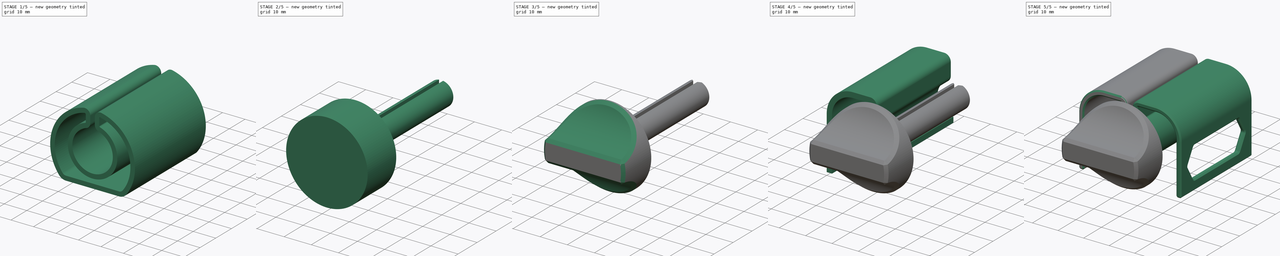
[diagram: build sequence overview — one tinted view per stage of 5, left to right]
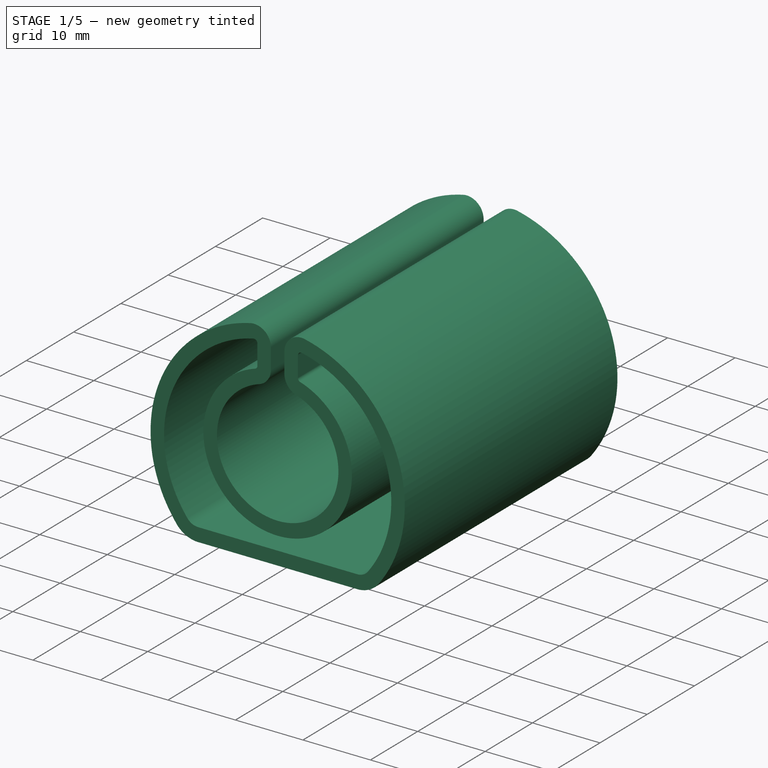
[diagram: stage 1 of 5 — iso view after this stage's code; geometry added in this stage tinted green]
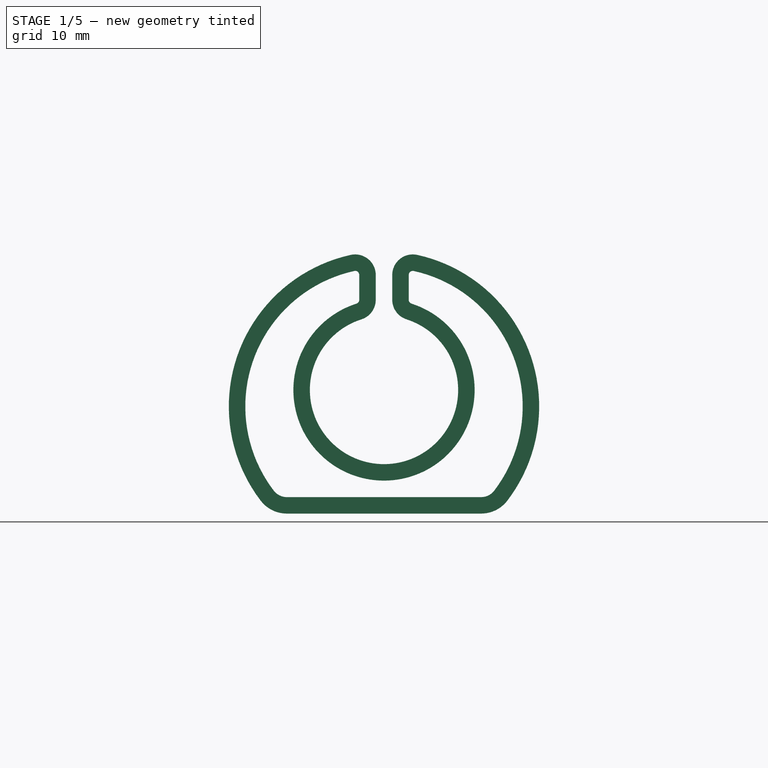
[diagram: stage 1 of 5 — front view after this stage's code; geometry added in this stage tinted green]
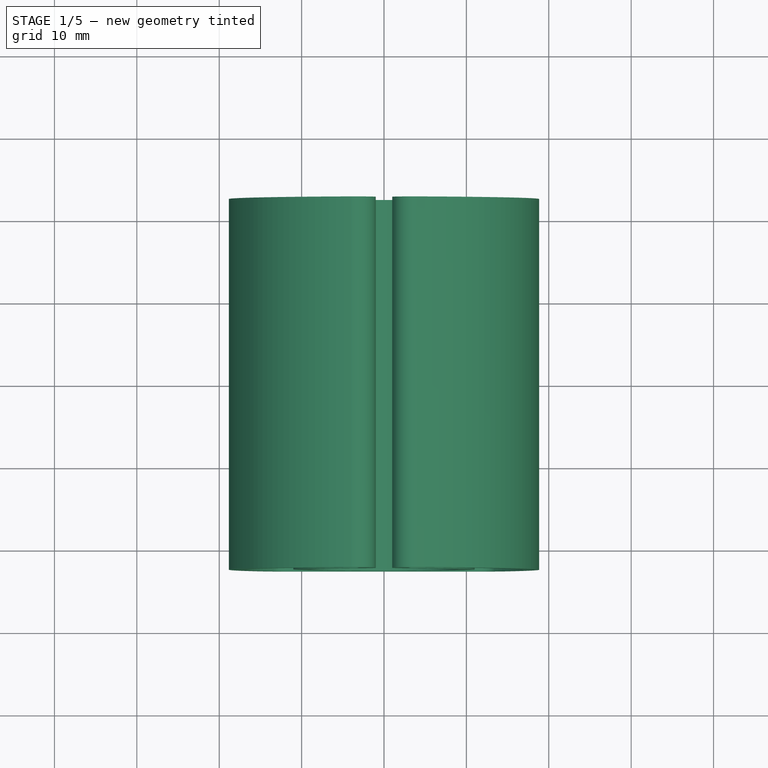
[diagram: stage 1 of 5 — top view after this stage's code; geometry added in this stage tinted green]
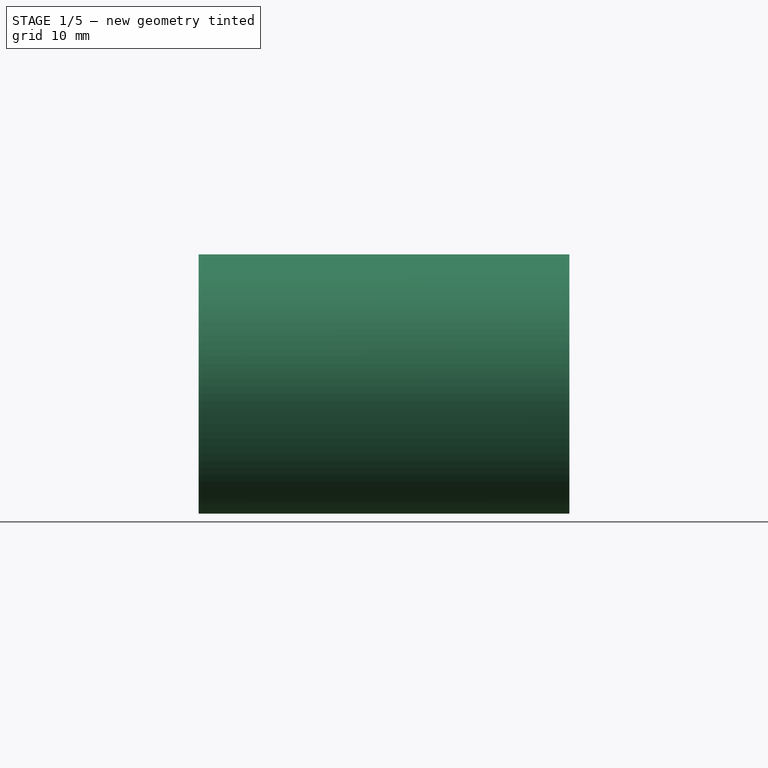
[diagram: stage 1 of 5 — right view after this stage's code; geometry added in this stage tinted green]
FCSTD DOCUMENT  (FreeCAD 1.2R20260609 (Git shallow))
Label: Tooth Paste Squeezer v0
License: Creative Commons Attribution-NonCommercial-ShareAlike 4.0
LicenseURL: https://creativecommons.org/licenses/by-nc-sa/4.0/
objects: Sketcher::SketchObject×8, PartDesign::Chamfer×5, PartDesign::Pad×4, App::Point×3, PartDesign::Pocket×3, PartDesign::Body×3, PartDesign::Mirrored×2, PartDesign::Thickness×1, PartDesign::SubShapeBinder×1, PartDesign::Revolution×1
note: 66 computed .brp shape members not serialized (recipe doc carries the construction recipe); baked Part::Feature solids carry a one-line shape summary decoded from their .brp

FEATURE [PartDesign::Body] Body  label="Support"
  AllowCompound = false
  Group = -> [Sketch,Pad,Sketch001,Pocket,Mirrored,Chamfer]
  Origin = -> Origin
  Tip = -> Chamfer
FEATURE [App::Point] Origin005  label="Origine005"
  Role = Origin
FEATURE [Sketcher::SketchObject] Sketch003
  ArcFitTolerance = 1e-06
  AttachmentSupport = -> [Origin004]
  ExternalTypes = [0]
  FullyConstrained = true
  MakeInternals = false
  MapMode = 5
  Placement = pos=(0,0,0) rot=(1,0,0;1.5708rad)
  sketch-geometry (8):
    g0: ArcOfCircle CenterX=0 CenterY=-2 CenterZ=0 NormalX=0 NormalY=0 NormalZ=1 AngleXU=0 Radius=18.8338 StartAngle=1.78675 EndAngle=3.79352
    g1: ArcOfCircle CenterX=-3.5 CenterY=13.9545 CenterZ=0 NormalX=0 NormalY=0 NormalZ=1 AngleXU=0 Radius=2.5 StartAngle=4e-16 EndAngle=1.78675
    g2: LineSegment StartX=-1 StartY=13.9545 StartZ=0 EndX=-1 EndY=10.9545 EndZ=0
    g3: ArcOfCircle CenterX=0 CenterY=0 CenterZ=0 NormalX=0 NormalY=0 NormalZ=1 AngleXU=0 Radius=9 StartAngle=1.88005 EndAngle=4.71239
    g4: ArcOfCircle CenterX=-3.5 CenterY=10.9545 CenterZ=0 NormalX=0 NormalY=0 NormalZ=1 AngleXU=0 Radius=2.5 StartAngle=5.02164 EndAngle=6.28319
    g5: LineSegment StartX=-1.7e-15 StartY=-9 StartZ=0 EndX=0 EndY=-15 EndZ=0
    g6: LineSegment StartX=0 StartY=-15 StartZ=0 EndX=-11.7916 EndY=-15 EndZ=0
    g7: ArcOfCircle CenterX=-11.7916 CenterY=-11 CenterZ=0 NormalX=0 NormalY=0 NormalZ=1 AngleXU=0 Radius=4 StartAngle=3.79352 EndAngle=4.71239
  constraints (22):
    c: Tangent(g1,g2) = 1.5708
    c: PointOnObject(g3,g-2)
    c: Vertical(g2)
    c: Distance(g2,g-2) = 1
    c: Radius(g3) = 9
    c: Coincident(g3,g-1)
    c: Tangent(g3,g4) = 1.5708
    c: Tangent(g2,g4) = 1.5708
    c: Equal(g1,g4)
    c: Coincident(g5,g3)
    c: PointOnObject(g5,g-2)
    c: Coincident(g5,g6)
    c: Tangent(g6,g7) = 1.5708
    c: Horizontal(g6)
    c: Tangent(g7,g0) = -1.5708
    c: DistanceY(g5,g5) = 6
    c: Diameter(g1) = 5
    c: Diameter(g7) = 8
    c: Tangent(g0,g1) = -1.5708
    c: PointOnObject(g0,g-2)
    c: Distance(g0,g-1) = 2
    c: DistanceY(g2,g2) = 3
FEATURE [PartDesign::Pad] Pad001
  Direction = (0,-1,2e-16)
  FuzzyTolerance = 0
  Length = 45
  Length2 = 10
  Profile = -> Sketch003
  ReferenceAxis = -> Sketch003 [N_Axis]
  Refine = true
  SideType = 2
  Suppressed = false
  Type = 0
  Type2 = 0
FEATURE [PartDesign::Thickness] Thickness
  Base = -> Pad001 [Face9,Face10,Face7]
  BaseFeature = -> Pad001
  FuzzyTolerance = 0
  Intersection = false
  Join = 0
  Mode = 0
  Refine = true
  Reversed = true
  SupportTransform = false
  Suppressed = false
  Value = 2
FEATURE [PartDesign::Mirrored] Mirrored001
  BaseFeature = -> Thickness
  FuzzyTolerance = 0
  MirrorPlane = -> Sketch003 [V_Axis]
  Originals = -> [Pad001]
  Refine = true
  Suppressed = false
  TransformMode = 1
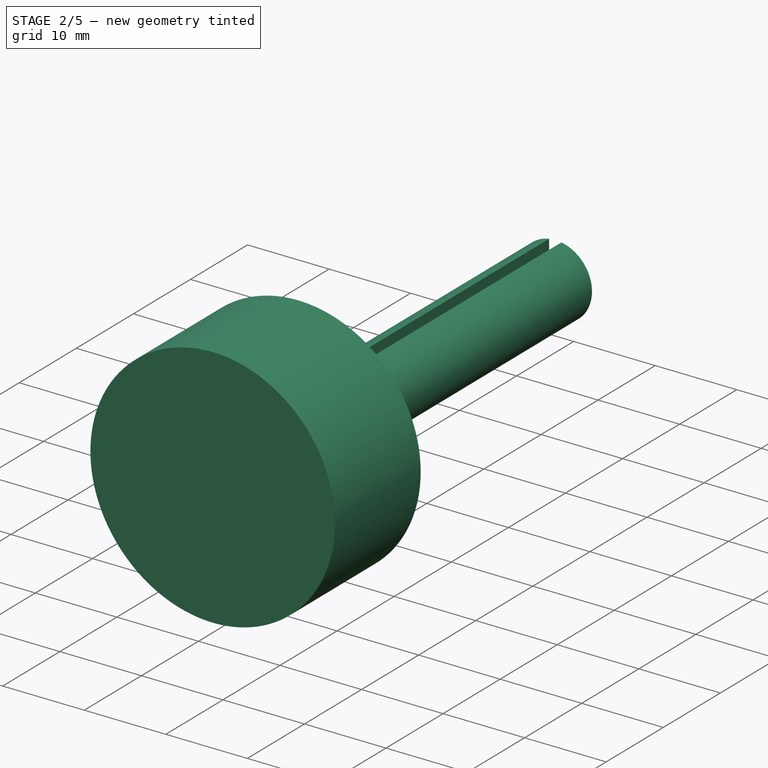
[diagram: stage 2 of 5 — iso view after this stage's code; geometry added in this stage tinted green]
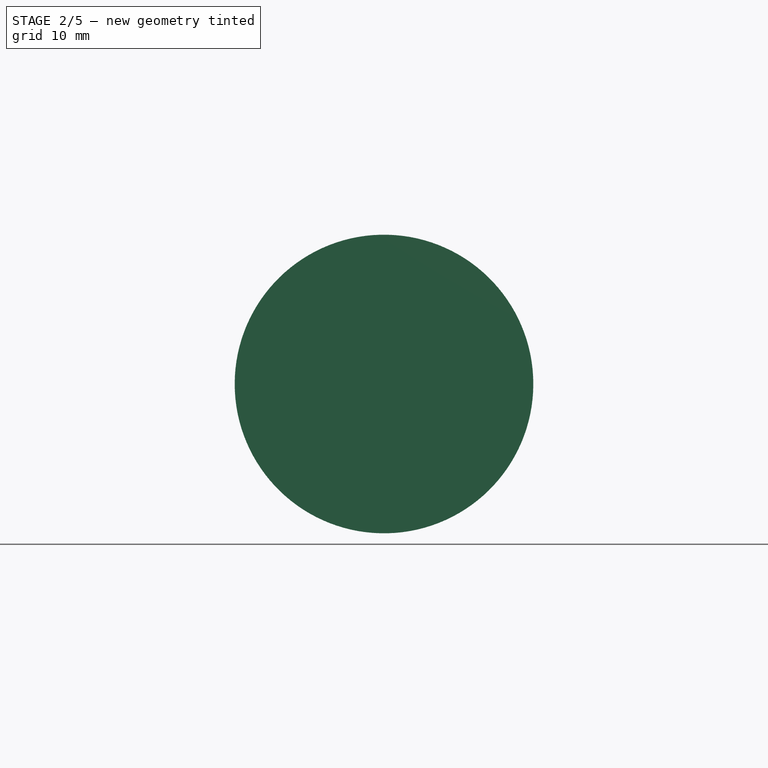
[diagram: stage 2 of 5 — front view after this stage's code; geometry added in this stage tinted green]
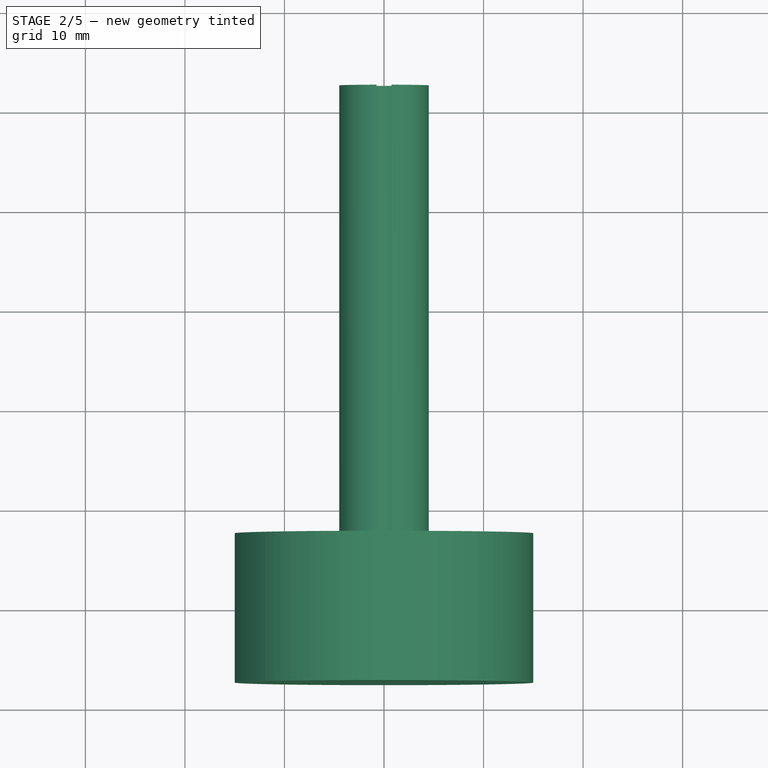
[diagram: stage 2 of 5 — top view after this stage's code; geometry added in this stage tinted green]
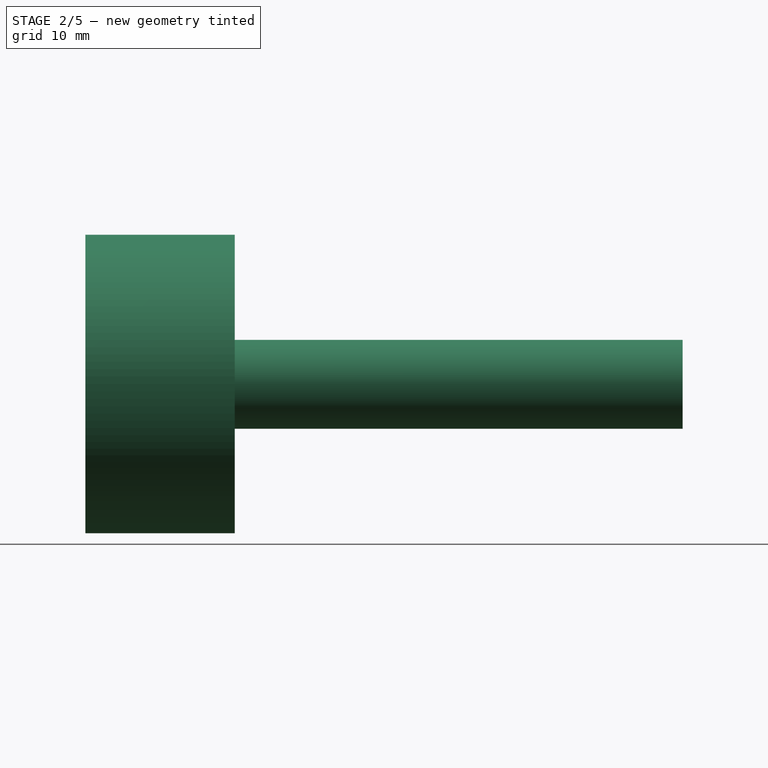
[diagram: stage 2 of 5 — right view after this stage's code; geometry added in this stage tinted green]
FEATURE [PartDesign::Chamfer] Chamfer001
  Angle = 45
  Base = -> Mirrored001 [Face22,Face6]
  BaseFeature = -> Mirrored001
  ChamferType = 0
  FlipDirection = false
  FuzzyTolerance = 0
  Refine = true
  Size = 0.5
  Size2 = 1
  SupportTransform = false
  Suppressed = false
  UseAllEdges = false
FEATURE [PartDesign::Body] Body002  label="Support v2"
  AllowCompound = false
  Group = -> [Sketch003,Pad001,Thickness,Mirrored001,Chamfer001]
  Origin = -> Origin004
  Tip = -> Chamfer001
FEATURE [App::Point] Origin007  label="Origine-point"
  Role = Origin
FEATURE [PartDesign::SubShapeBinder] Binder
  BindCopyOnChange = 0
  BindMode = 0
  ClaimChildren = false
  Context = -> Body003 [Binder.]
  Fuse = false
  MakeFace = true
  OffsetFill = false
  OffsetIntersection = false
  OffsetJoinType = 0
  OffsetOpenResult = false
  PartialLoad = false
  Refine = true
  Relative = true
  Support = -> [Body002]
  _Version = 2
FEATURE [Sketcher::SketchObject] Sketch004
  ArcFitTolerance = 1e-06
  AttachmentSupport = -> [Origin006]
  ExternalTypes = [0]
  FullyConstrained = true
  MakeInternals = true
  MapMode = 3
  Placement = pos=(0,0,0) rot=(1,0,0;1.5708rad)
  sketch-geometry (4):
    g0: ArcOfCircle CenterX=0 CenterY=0 CenterZ=0 NormalX=0 NormalY=0 NormalZ=1 AngleXU=0 Radius=4.5 StartAngle=1.73824 EndAngle=7.68653
    g1: ArcOfCircle CenterX=0 CenterY=0 CenterZ=0 NormalX=0 NormalY=0 NormalZ=1 AngleXU=0 Radius=2.5 StartAngle=1.87549 EndAngle=7.54929
    g2: LineSegment StartX=-0.75 StartY=4.43706 StartZ=0 EndX=-0.75 EndY=2.38485 EndZ=0
    g3: LineSegment StartX=0.75 StartY=4.43706 StartZ=0 EndX=0.75 EndY=2.38485 EndZ=0
  constraints (12):
    c: Coincident(g0,g-1)
    c: Coincident(g1,g0)
    c: Vertical(g2)
    c: Vertical(g3)
    c: Horizontal(g3,g2)
    c: Distance(g3,g2) = 1.5
    c: Coincident(g2,g0)
    c: Coincident(g3,g0)
    c: Coincident(g2,g1)
    c: Coincident(g3,g1)
    c: Diameter(g1) = 5
    c: Distance(g0,g1) = 2
FEATURE [PartDesign::Pad] Pad002
  Direction = (0,-1,2e-16)
  FuzzyTolerance = 0
  Length = 10
  Length2 = 10
  Profile = -> Sketch004
  ReferenceAxis = -> Sketch004 [N_Axis]
  Refine = true
  SideType = 2
  Suppressed = false
  Type = 3
  Type2 = 0
  UpToFace = -> Binder [Face13]
FEATURE [Sketcher::SketchObject] Sketch005
  ArcFitTolerance = 1e-06
  AttachmentSupport = -> [Pad002]
  ExternalTypes = [0]
  FullyConstrained = true
  MakeInternals = true
  MapMode = 5
  Placement = pos=(0,-22.5,5.8e-15) rot=(1,0,0;1.5708rad)
  sketch-geometry (1):
    g0: Circle CenterX=0 CenterY=0 CenterZ=0 NormalX=0 NormalY=0 NormalZ=1 AngleXU=0 Radius=15
  constraints (2):
    c: Diameter(g0) = 30
    c: Coincident(g0,g-1)
FEATURE [PartDesign::Pad] Pad003
  BaseFeature = -> Pad002
  Direction = (0,-1,2e-16)
  FuzzyTolerance = 0
  Length = 15
  Length2 = 10
  Profile = -> Sketch005
  ReferenceAxis = -> Sketch005 [N_Axis]
  Refine = true
  SideType = 0
  Suppressed = false
  Type = 0
  Type2 = 0
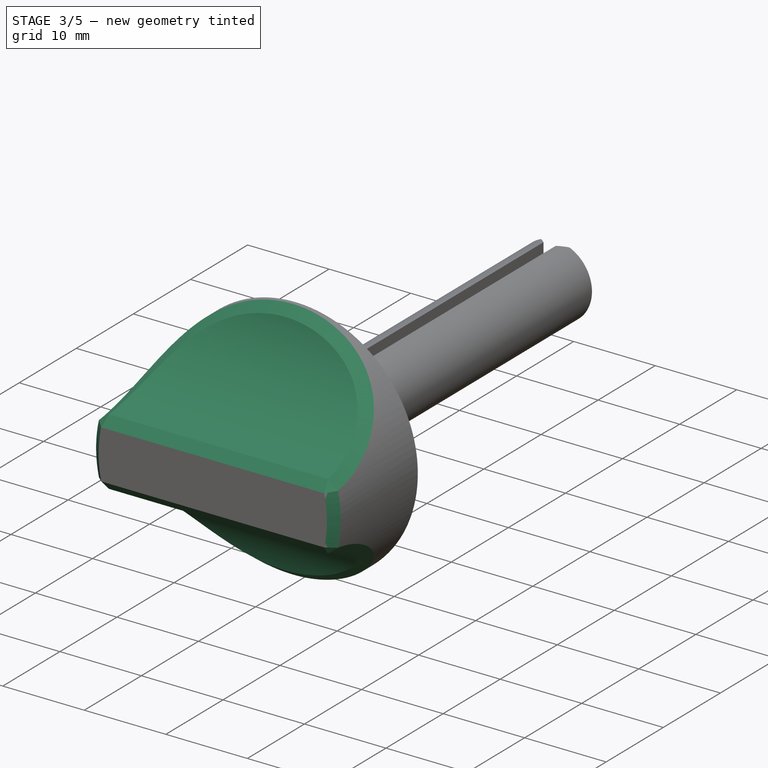
[diagram: stage 3 of 5 — iso view after this stage's code; geometry added in this stage tinted green]
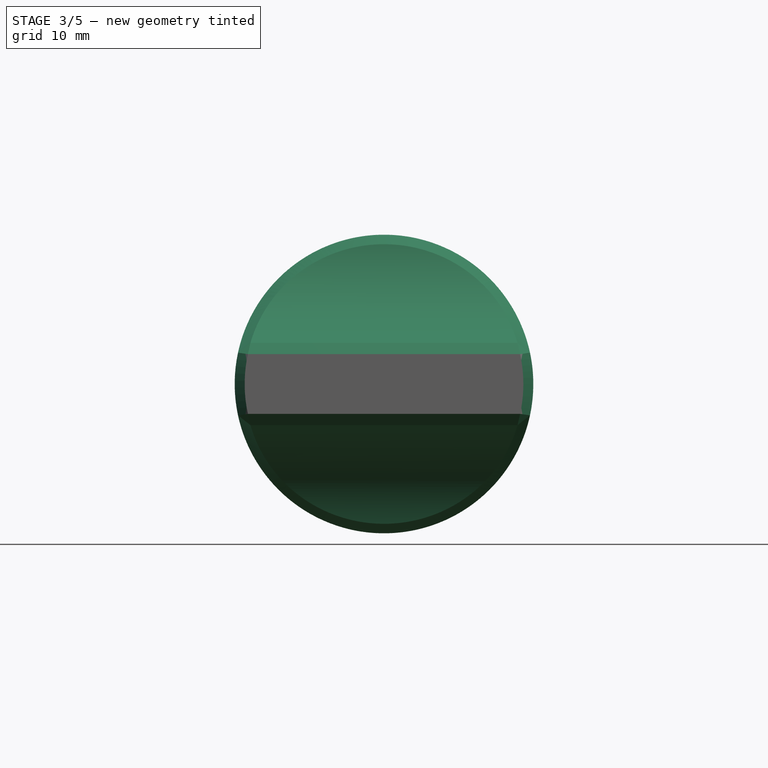
[diagram: stage 3 of 5 — front view after this stage's code; geometry added in this stage tinted green]
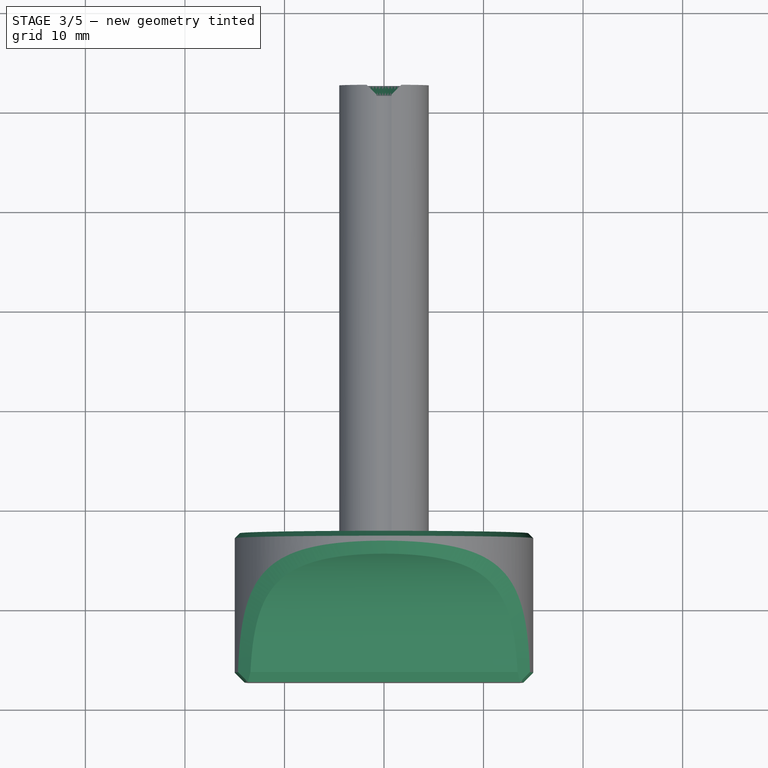
[diagram: stage 3 of 5 — top view after this stage's code; geometry added in this stage tinted green]
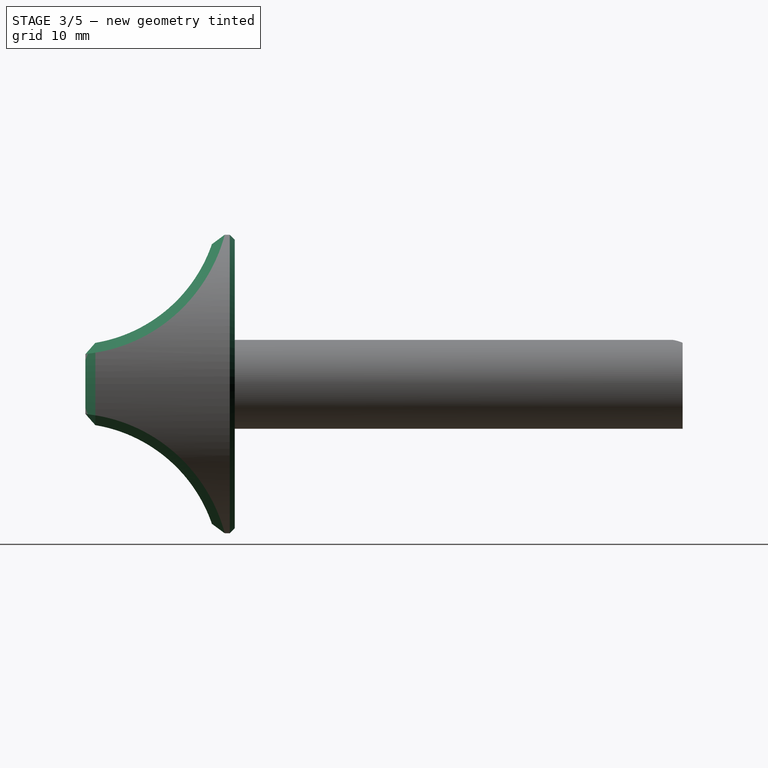
[diagram: stage 3 of 5 — right view after this stage's code; geometry added in this stage tinted green]
FEATURE [Sketcher::SketchObject] Sketch006
  ArcFitTolerance = 1e-06
  AttachmentSupport = -> [Origin006]
  ExternalGeometry = -> [Pad003]
  ExternalTypes = [0,0]
  FullyConstrained = true
  MakeInternals = true
  MapMode = 4
  Placement = pos=(0,0,0) rot=(0.57735,0.57735,0.57735;2.0944rad)
  sketch-geometry (4):
    g0: Circle CenterX=-38.9768 CenterY=18.9271 CenterZ=0 NormalX=0 NormalY=0 NormalZ=1 AngleXU=0 Radius=15
    g1: GeomPoint [constr] X=-24.5 Y=15 Z=0
    g2: GeomPoint [constr] X=-37.5 Y=4 Z=0
    g3: Circle CenterX=-38.9768 CenterY=-18.9271 CenterZ=0 NormalX=0 NormalY=0 NormalZ=1 AngleXU=0 Radius=15
  constraints (9):
    c: PointOnObject(g1,g0)
    c: Horizontal(g1,g-3)
    c: DistanceX(g1,g-3) = 2
    c: Diameter(g0) = 30
    c: PointOnObject(g2,g0)
    c: Vertical(g2,g-4)
    c: Distance(g2,g-1) = 4
    c: Symmetric(g3,g0,g-1)
    c: Equal(g3,g0)
FEATURE [PartDesign::Pocket] Pocket001
  BaseFeature = -> Pad003
  Direction = (-1,0,0)
  FuzzyTolerance = 0
  Length = 5
  Length2 = 5
  Profile = -> Sketch006
  ReferenceAxis = -> Sketch006 [N_Axis]
  Refine = true
  SideType = 2
  Suppressed = false
  Type = 1
  Type2 = 0
FEATURE [PartDesign::Chamfer] Chamfer002
  Angle = 45
  Base = -> Pocket001 [Face9,Face8,Face10]
  BaseFeature = -> Pocket001
  ChamferType = 0
  FlipDirection = false
  FuzzyTolerance = 0
  Refine = true
  Size = 1
  Size2 = 1
  SupportTransform = false
  Suppressed = false
  UseAllEdges = false
FEATURE [PartDesign::Chamfer] Chamfer003
  Angle = 45
  Base = -> Chamfer002 [Edge3]
  BaseFeature = -> Chamfer002
  ChamferType = 0
  FlipDirection = false
  FuzzyTolerance = 0
  Refine = true
  Size = 0.5
  Size2 = 1
  SupportTransform = false
  Suppressed = false
  UseAllEdges = false
FEATURE [PartDesign::Chamfer] Chamfer004
  Angle = 45
  Base = -> Chamfer003 [Edge40,Edge42,Edge37]
  BaseFeature = -> Chamfer003
  ChamferType = 0
  FlipDirection = false
  FuzzyTolerance = 0
  Refine = true
  Size = 1
  Size2 = 1
  SupportTransform = false
  Suppressed = false
  UseAllEdges = false
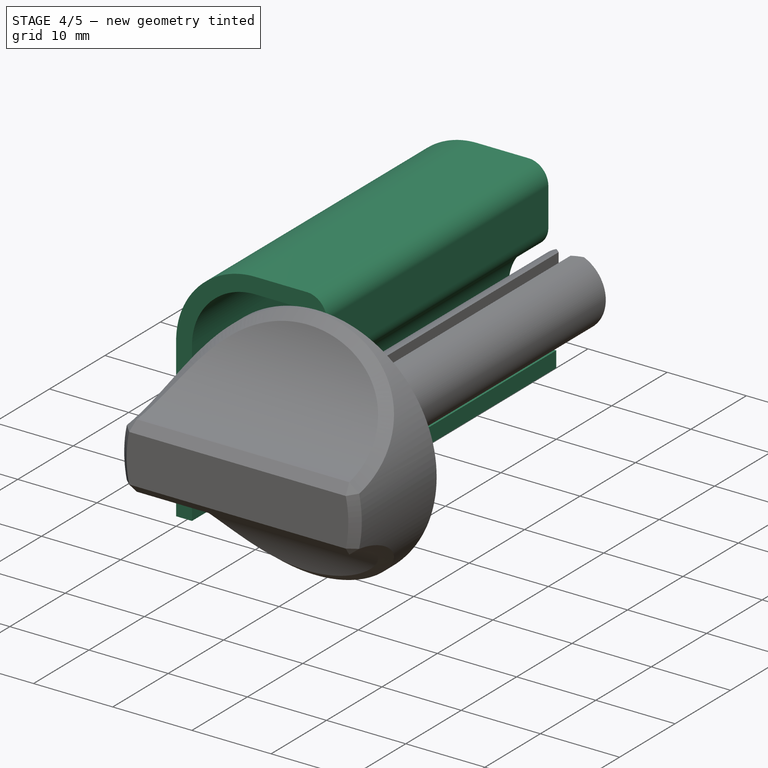
[diagram: stage 4 of 5 — iso view after this stage's code; geometry added in this stage tinted green]
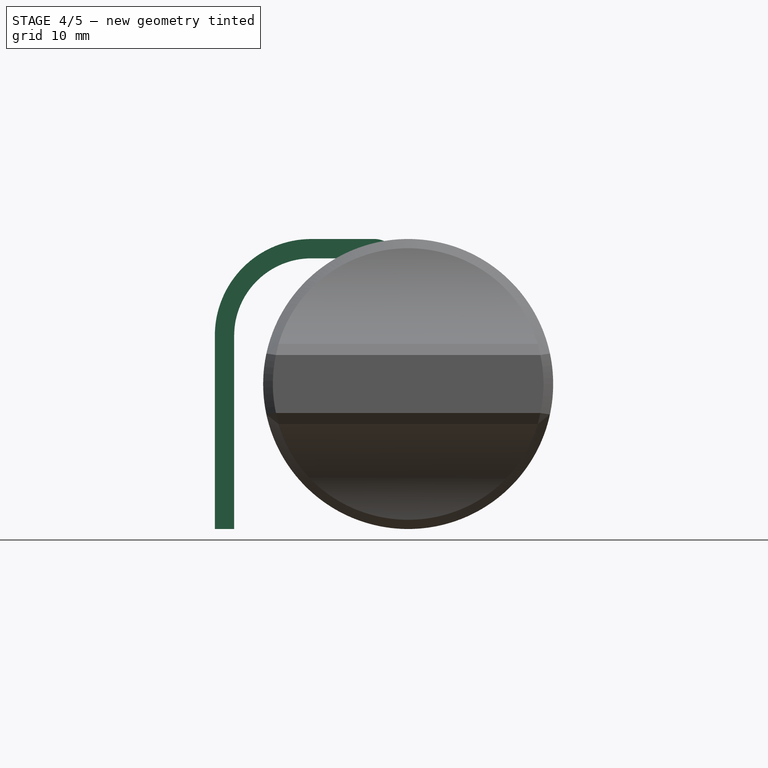
[diagram: stage 4 of 5 — front view after this stage's code; geometry added in this stage tinted green]
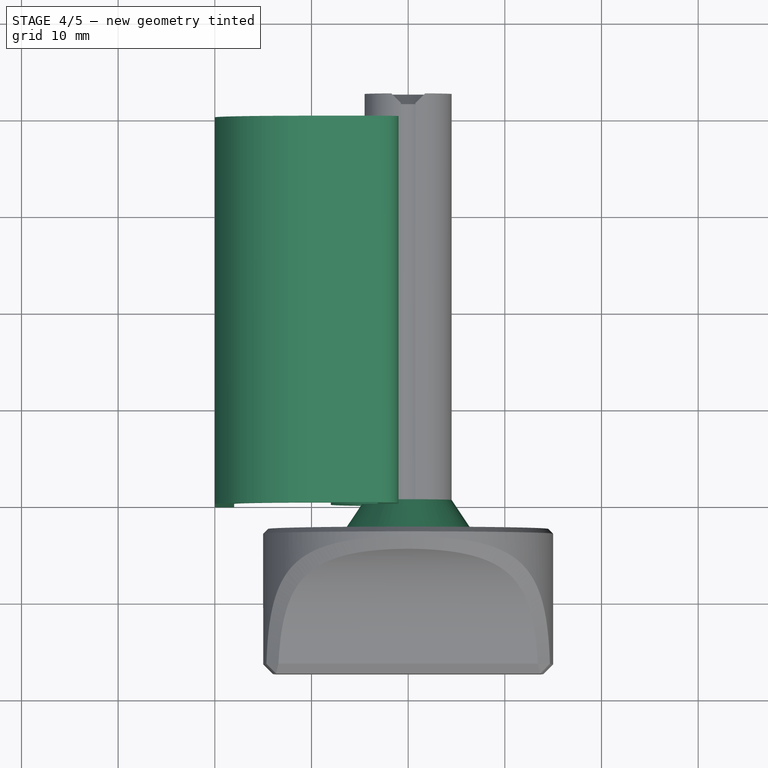
[diagram: stage 4 of 5 — top view after this stage's code; geometry added in this stage tinted green]
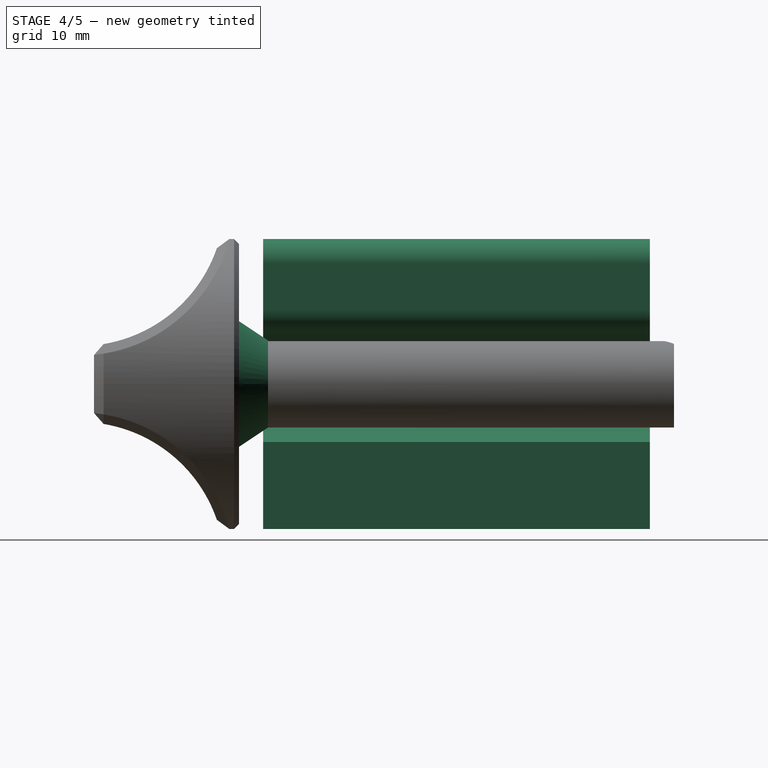
[diagram: stage 4 of 5 — right view after this stage's code; geometry added in this stage tinted green]
FEATURE [App::Point] Origin001  label="Origine"
  Role = Origin
FEATURE [Sketcher::SketchObject] Sketch
  ArcFitTolerance = 1e-06
  AttachmentSupport = -> [Origin]
  ExternalTypes = [0]
  FullyConstrained = true
  MakeInternals = false
  MapMode = 5
  Placement = pos=(0,0,0) rot=(1,0,0;1.5708rad)
  sketch-geometry (17):
    g0: LineSegment StartX=-20 StartY=-15 StartZ=0 EndX=-20 EndY=5 EndZ=0
    g1: ArcOfCircle CenterX=-10 CenterY=5 CenterZ=0 NormalX=0 NormalY=0 NormalZ=1 AngleXU=0 Radius=10 StartAngle=1.5708 EndAngle=3.14159
    g2: LineSegment StartX=-10 StartY=15 StartZ=0 EndX=-3.5 EndY=15 EndZ=0
    g3: ArcOfCircle CenterX=-3.5 CenterY=12.5 CenterZ=0 NormalX=0 NormalY=0 NormalZ=1 AngleXU=0 Radius=2.5 StartAngle=1e-16 EndAngle=1.5708
    g4: LineSegment StartX=-1 StartY=12.5 StartZ=0 EndX=-1 EndY=7.74597 EndZ=0
    g5: ArcOfCircle CenterX=0 CenterY=0 CenterZ=0 NormalX=0 NormalY=0 NormalZ=1 AngleXU=0 Radius=6 StartAngle=1.99519 EndAngle=4.71239
    g6: ArcOfCircle CenterX=-3.5 CenterY=7.74597 CenterZ=0 NormalX=0 NormalY=0 NormalZ=1 AngleXU=0 Radius=2.5 StartAngle=5.13678 EndAngle=6.28319
    g7: LineSegment StartX=-20 StartY=-15 StartZ=0 EndX=-18 EndY=-15 EndZ=0
    g8: LineSegment StartX=-18 StartY=-15 StartZ=0 EndX=-18 EndY=5 EndZ=0
    g9: ArcOfCircle CenterX=-10 CenterY=5 CenterZ=0 NormalX=0 NormalY=0 NormalZ=1 AngleXU=0 Radius=8 StartAngle=1.5708 EndAngle=3.14159
    g10: LineSegment StartX=-10 StartY=13 StartZ=0 EndX=-3.5 EndY=13 EndZ=0
    g11: LineSegment StartX=-3 StartY=12.5 StartZ=0 EndX=-3 EndY=7.74597 EndZ=0
    g12: ArcOfCircle CenterX=0 CenterY=0 CenterZ=0 NormalX=0 NormalY=0 NormalZ=1 AngleXU=0 Radius=8 StartAngle=1.99519 EndAngle=4.71239
    g13: LineSegment StartX=-1.5e-15 StartY=-8 StartZ=0 EndX=-1.1e-15 EndY=-6 EndZ=0
    g14: ArcOfCircle CenterX=-3.5 CenterY=12.5 CenterZ=0 NormalX=0 NormalY=0 NormalZ=1 AngleXU=0 Radius=0.5 StartAngle=-4.53e-14 EndAngle=1.5708
    g15: GeomPoint [constr] X=-3 Y=13 Z=0
    g16: ArcOfCircle CenterX=-3.5 CenterY=7.74597 CenterZ=0 NormalX=0 NormalY=0 NormalZ=1 AngleXU=0 Radius=0.5 StartAngle=5.13678 EndAngle=6.28319
  constraints (41):
    c: Tangent(g0,g1) = 1.5708
    c: Tangent(g1,g2) = 1.5708
    c: Tangent(g2,g3) = 1.5708
    c: Tangent(g3,g4) = 1.5708
    c: Vertical(g0)
    c: Horizontal(g2)
    c: PointOnObject(g5,g-2)
    c: Vertical(g4)
    c: Distance(g4,g-2) = 1
    c: Radius(g5) = 6
    c: Coincident(g5,g-1)
    c: Radius(g1) = 10
    c: Distance(g0,g-1) = 15
    c: Distance(g0,g-2) = 20
    c: Radius(g3) = 2.5
    c: Tangent(g5,g6) = 1.5708
    c: Tangent(g4,g6) = 1.5708
    c: Equal(g3,g6)
    c: Distance(g-1,g2) = 15
    c: Coincident(g0,g7)
    c: Horizontal(g7)
    c: Coincident(g7,g8)
    c: Vertical(g8)
    c: Tangent(g8,g9) = 1.5708
    c: Tangent(g9,g10) = 1.5708
    c: Vertical(g11)
    c: PointOnObject(g12,g-2)
    c: Coincident(g12,g13)
    c: Coincident(g13,g5)
    c: Distance(g7,g7) = 2
    c: PointOnObject(g15,g10)
    c: PointOnObject(g15,g11)
    c: Tangent(g10,g14) = 1.5708
    c: Tangent(g11,g14) = 1.5708
    c: Horizontal(g10)
    c: Tangent(g12,g16) = 1.5708
    c: Tangent(g11,g16) = 1.5708
    c: Coincident(g12,g5)
    c: Coincident(g1,g9)
    c: Coincident(g14,g3)
    c: Coincident(g6,g16)
FEATURE [PartDesign::Pad] Pad
  Direction = (0,-1,2e-16)
  FuzzyTolerance = 0
  Length = 40
  Length2 = 10
  Profile = -> Sketch
  ReferenceAxis = -> Sketch [N_Axis]
  Refine = true
  SideType = 2
  Suppressed = false
  Type = 0
  Type2 = 0
FEATURE [Sketcher::SketchObject] Sketch007
  ArcFitTolerance = 1e-06
  AttachmentSupport = -> [Chamfer004]
  ExternalGeometry = -> [Chamfer004]
  ExternalTypes = [0]
  FullyConstrained = true
  MakeInternals = true
  MapMode = 5
  Placement = pos=(0,-22.5,6.2e-15) rot=(0,0.707107,0.707107;3.14159rad)
  sketch-geometry (1):
    g0: Circle CenterX=0 CenterY=-1.2e-15 CenterZ=0 NormalX=0 NormalY=0 NormalZ=1 AngleXU=0 Radius=2.5
  constraints (2):
    c: Coincident(g0,g-3)
    c: PointOnObject(g-3,g0)
FEATURE [PartDesign::Pocket] Pocket002
  BaseFeature = -> Chamfer004
  Direction = (0,-1,0)
  FuzzyTolerance = 0
  Length = 3
  Length2 = 5
  Profile = -> Sketch007
  ReferenceAxis = -> Sketch007 [N_Axis]
  Refine = true
  SideType = 0
  Suppressed = false
  Type = 0
  Type2 = 0
FEATURE [Sketcher::SketchObject] Sketch008
  ArcFitTolerance = 1e-06
  AttachmentSupport = -> [Origin006]
  ExternalGeometry = -> [Pocket002]
  ExternalTypes = [0,0]
  FullyConstrained = true
  MakeInternals = true
  MapMode = 5
  sketch-geometry (5):
    g0: LineSegment StartX=4.5 StartY=-19.5 StartZ=0 EndX=6.5 EndY=-22.5 EndZ=0
    g1: LineSegment StartX=6.5 StartY=-22.5 StartZ=0 EndX=4.5 EndY=-22.5 EndZ=0
    g2: LineSegment StartX=4.5 StartY=-19.5 StartZ=0 EndX=2.5 EndY=-19.5 EndZ=0
    g3: LineSegment StartX=2.5 StartY=-19.5 StartZ=0 EndX=2.5 EndY=-22.5 EndZ=0
    g4: LineSegment StartX=2.5 StartY=-22.5 StartZ=0 EndX=4.5 EndY=-22.5 EndZ=0
  constraints (14):
    c: PointOnObject(g0,g-13)
    c: Coincident(g0,g1)
    c: Coincident(g1,g-15)
    c: Horizontal(g1)
    c: DistanceY(g-15,g0) = 3
    c: DistanceX(g1,g1) = 2
    c: Coincident(g2,g0)
    c: Horizontal(g2)
    c: Coincident(g2,g3)
    c: PointOnObject(g3,g-15)
    c: Vertical(g3)
    c: Coincident(g3,g4)
    c: Coincident(g4,g1)
    c: Vertical(g3,g-19)
FEATURE [PartDesign::Revolution] Revolution
  Angle = 360
  Angle2 = 0
  Axis = (0,1,0)
  Base = (0,0,0)
  BaseFeature = -> Pocket002
  FuseOrder = 0
  FuzzyTolerance = 0
  Profile = -> Sketch008
  ReferenceAxis = -> Sketch008 [V_Axis]
  Refine = true
  Reversed = true
  Suppressed = false
  Type = 0
FEATURE [PartDesign::Body] Body003  label="Axis"
  AllowCompound = true
  Group = -> [Binder,Sketch004,Pad002,Sketch005,Pad003,Sketch006,Pocket001,Chamfer002,Chamfer003,Chamfer004,Sketch007,Pocket002,Sketch008,Revolution]
  Origin = -> Origin006
  Tip = -> Revolution
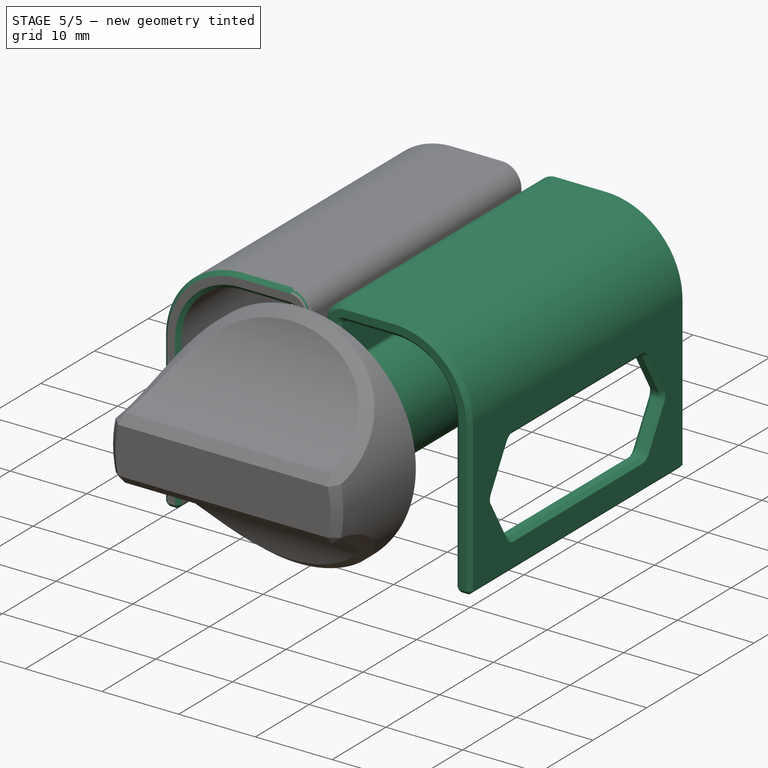
[diagram: stage 5 of 5 — iso view after this stage's code; geometry added in this stage tinted green]
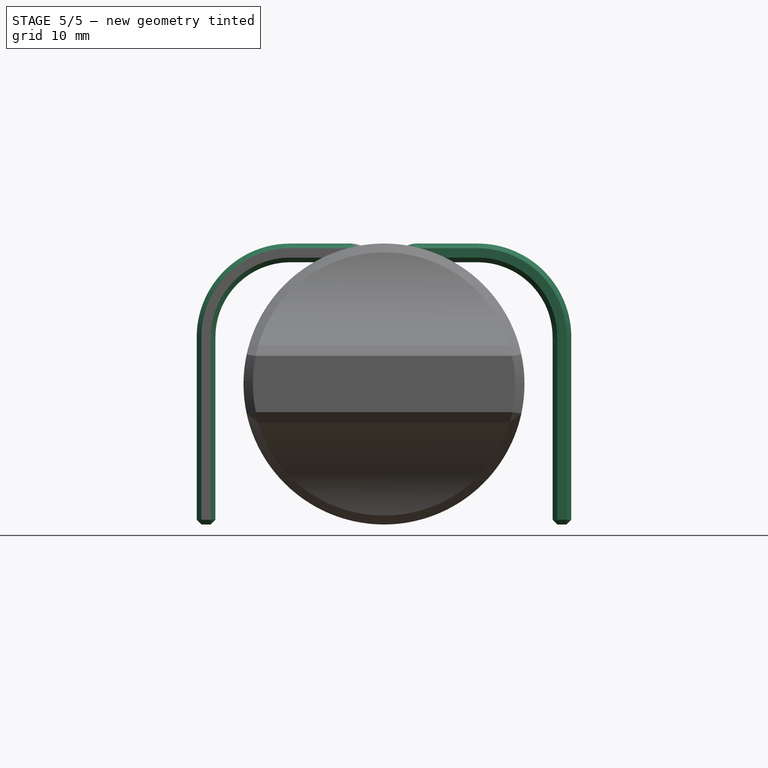
[diagram: stage 5 of 5 — front view after this stage's code; geometry added in this stage tinted green]
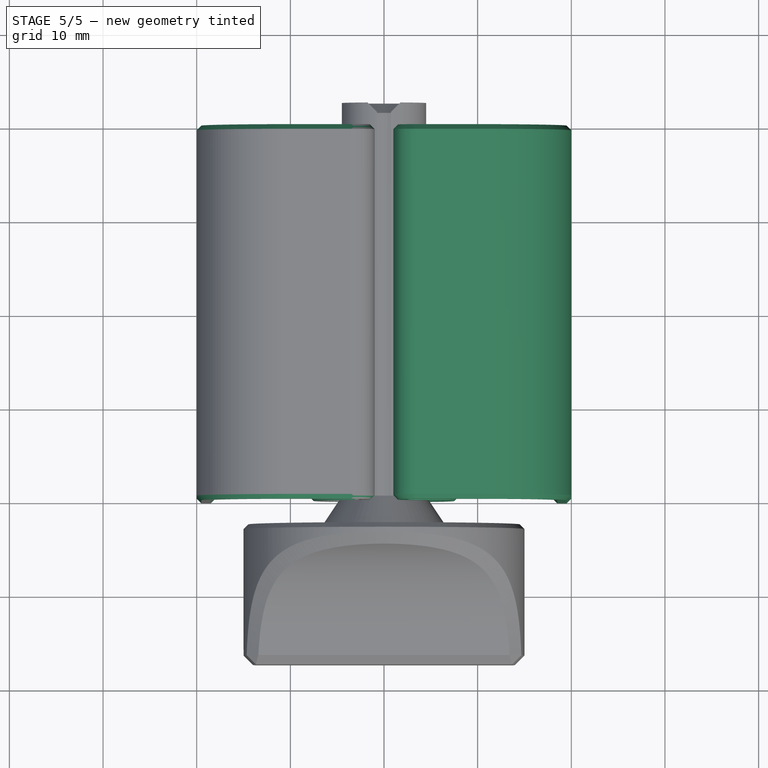
[diagram: stage 5 of 5 — top view after this stage's code; geometry added in this stage tinted green]
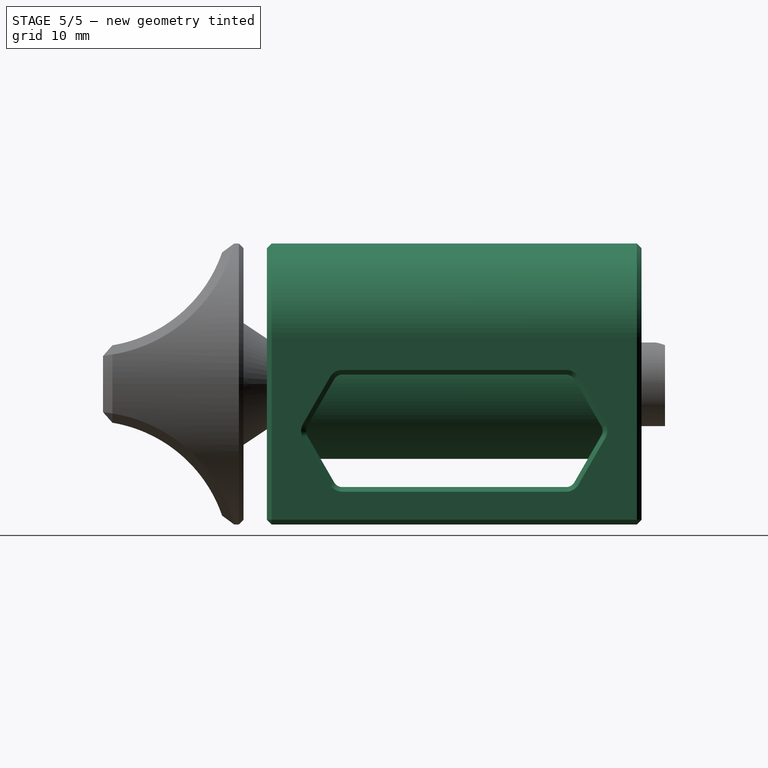
[diagram: stage 5 of 5 — right view after this stage's code; geometry added in this stage tinted green]
FEATURE [Sketcher::SketchObject] Sketch001
  ArcFitTolerance = 1e-06
  AttachmentSupport = -> [Pad]
  ExternalGeometry = -> [Pad]
  ExternalTypes = [0,0,0]
  FullyConstrained = true
  MakeInternals = false
  MapMode = 5
  Placement = pos=(-20,0,0) rot=(0.57735,-0.57735,-0.57735;2.0944rad)
  sketch-geometry (18):
    g0: LineSegment StartX=-15.7113 StartY=-4.5 StartZ=0 EndX=-12.8246 EndY=0.5 EndZ=0
    g1: LineSegment StartX=-11.9585 StartY=1 StartZ=0 EndX=11.9585 EndY=1 EndZ=0
    g2: LineSegment StartX=12.8246 StartY=0.5 StartZ=0 EndX=15.7113 EndY=-4.5 EndZ=0
    g3: LineSegment StartX=15.7113 StartY=-5.5 StartZ=0 EndX=12.8246 EndY=-10.5 EndZ=0
    g4: LineSegment StartX=11.9585 StartY=-11 StartZ=0 EndX=-11.9585 EndY=-11 EndZ=0
    g5: LineSegment StartX=-12.8246 StartY=-10.5 StartZ=0 EndX=-15.7113 EndY=-5.5 EndZ=0
    g6: ArcOfCircle CenterX=-14.8453 CenterY=-5 CenterZ=0 NormalX=0 NormalY=0 NormalZ=1 AngleXU=0 Radius=1 StartAngle=2.61799 EndAngle=3.66519
    g7: GeomPoint [constr] X=-16 Y=-5 Z=0
    g8: ArcOfCircle CenterX=-11.9585 CenterY=7e-16 CenterZ=0 NormalX=0 NormalY=0 NormalZ=1 AngleXU=0 Radius=1 StartAngle=1.5708 EndAngle=2.61799
    g9: GeomPoint [constr] X=-12.5359 Y=1 Z=0
    g10: ArcOfCircle CenterX=-11.9585 CenterY=-10 CenterZ=0 NormalX=0 NormalY=0 NormalZ=1 AngleXU=0 Radius=1 StartAngle=3.66519 EndAngle=4.71239
    g11: GeomPoint [constr] X=-12.5359 Y=-11 Z=0
    g12: ArcOfCircle CenterX=11.9585 CenterY=-10 CenterZ=0 NormalX=0 NormalY=0 NormalZ=1 AngleXU=0 Radius=1 StartAngle=4.71239 EndAngle=5.75959
    g13: GeomPoint [constr] X=12.5359 Y=-11 Z=0
    g14: ArcOfCircle CenterX=14.8453 CenterY=-5 CenterZ=0 NormalX=0 NormalY=0 NormalZ=1 AngleXU=0 Radius=1 StartAngle=5.75959 EndAngle=6.80678
    g15: GeomPoint [constr] X=16 Y=-5 Z=0
    g16: ArcOfCircle CenterX=11.9585 CenterY=6e-16 CenterZ=0 NormalX=0 NormalY=0 NormalZ=1 AngleXU=0 Radius=1 StartAngle=0.523599 EndAngle=1.5708
    g17: GeomPoint [constr] X=12.5359 Y=1 Z=0
  constraints (41):
    c: Horizontal(g4)
    c: Horizontal(g1)
    c: Vertical(g13,g17)
    c: Symmetric(g7,g15,g-2)
    c: Distance(g7,g-4) = 4
    c: Distance(g11,g-5) = 4
    c: Distance(g9,g-3) = 4
    c: PointOnObject(g7,g0)
    c: PointOnObject(g7,g5)
    c: Tangent(g0,g6) = 1.5708
    c: Tangent(g5,g6) = 1.5708
    c: PointOnObject(g9,g0)
    c: PointOnObject(g9,g1)
    c: Tangent(g0,g8) = 1.5708
    c: Tangent(g1,g8) = 1.5708
    c: PointOnObject(g11,g4)
    c: PointOnObject(g11,g5)
    c: Tangent(g4,g10) = 1.5708
    c: Tangent(g5,g10) = 1.5708
    c: PointOnObject(g13,g3)
    c: PointOnObject(g13,g4)
    c: Tangent(g3,g12) = 1.5708
    c: Tangent(g4,g12) = 1.5708
    c: PointOnObject(g15,g2)
    c: PointOnObject(g15,g3)
    c: Tangent(g2,g14) = 1.5708
    c: Tangent(g3,g14) = 1.5708
    c: PointOnObject(g17,g1)
    c: PointOnObject(g17,g2)
    c: Tangent(g1,g16) = 1.5708
    c: Tangent(g2,g16) = 1.5708
    c: Equal(g6,g8)
    c: Equal(g8,g10)
    c: Equal(g10,g12)
    c: Equal(g12,g14)
    c: Equal(g14,g16)
    c: Radius(g8) = 1
    c: Angle(g-4,g5) = 0.523599
    c: Equal(g5,g0)
    c: Equal(g0,g2)
    c: Equal(g2,g3)
FEATURE [PartDesign::Pocket] Pocket
  BaseFeature = -> Pad
  Direction = (1,0,0)
  FuzzyTolerance = 0
  Length = 5
  Length2 = 5
  Profile = -> Sketch001
  ReferenceAxis = -> Sketch001 [N_Axis]
  Refine = true
  SideType = 0
  Suppressed = false
  Type = 2
  Type2 = 0
FEATURE [PartDesign::Mirrored] Mirrored
  BaseFeature = -> Pocket
  FuzzyTolerance = 0
  MirrorPlane = -> Sketch [V_Axis]
  Originals = -> [Pad]
  Refine = true
  Suppressed = false
  TransformMode = 1
FEATURE [PartDesign::Chamfer] Chamfer
  Angle = 45
  Base = -> Mirrored [Face26,Face52,Face45,Face14,Face7,Face33]
  BaseFeature = -> Mirrored
  ChamferType = 0
  FlipDirection = false
  FuzzyTolerance = 0
  Refine = true
  Size = 0.5
  Size2 = 1
  SupportTransform = false
  Suppressed = false
  UseAllEdges = false
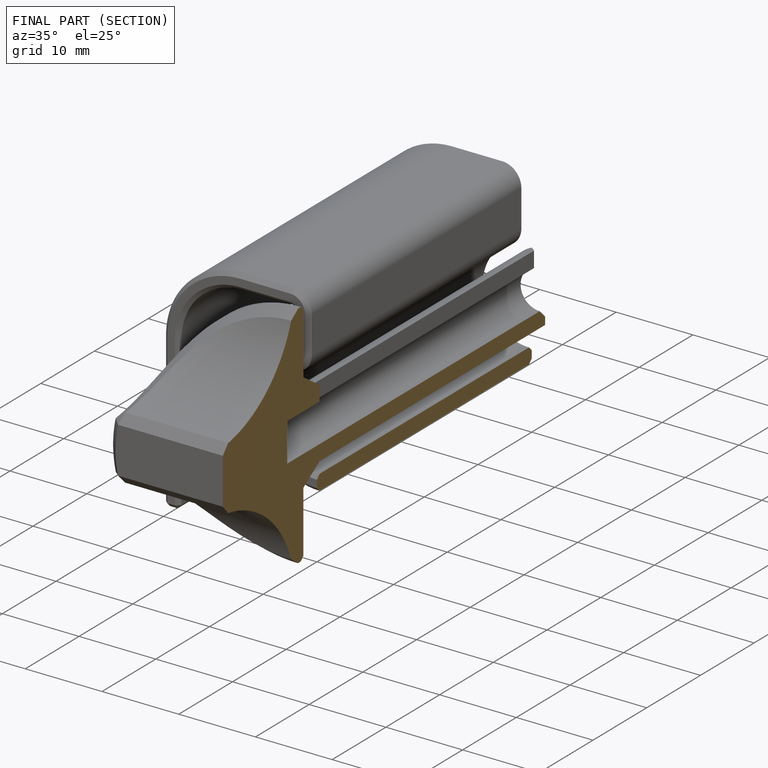
[diagram: finished part — half-section view (interior)]
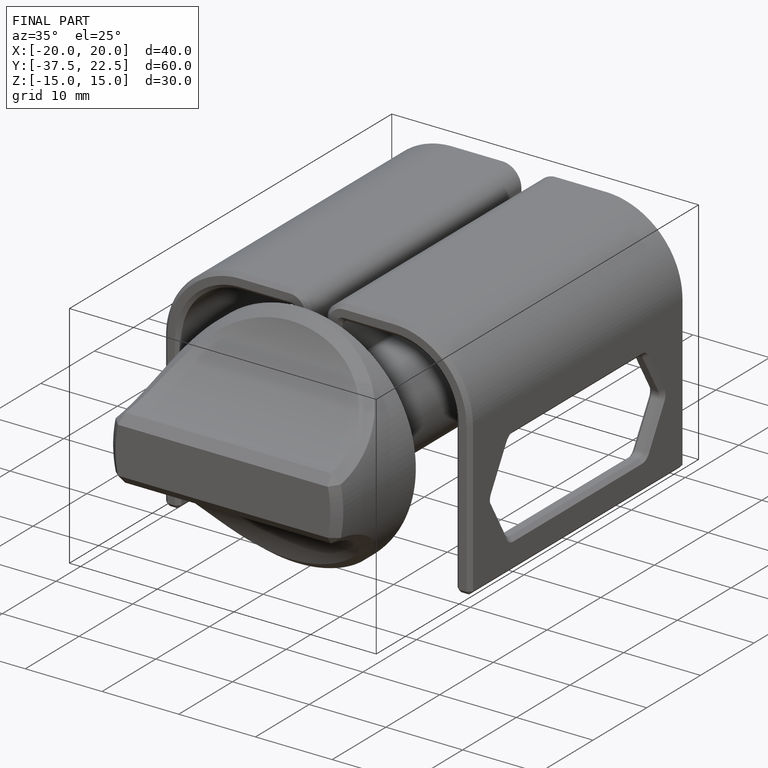
[diagram: finished part — iso view with bounding-box wireframe]
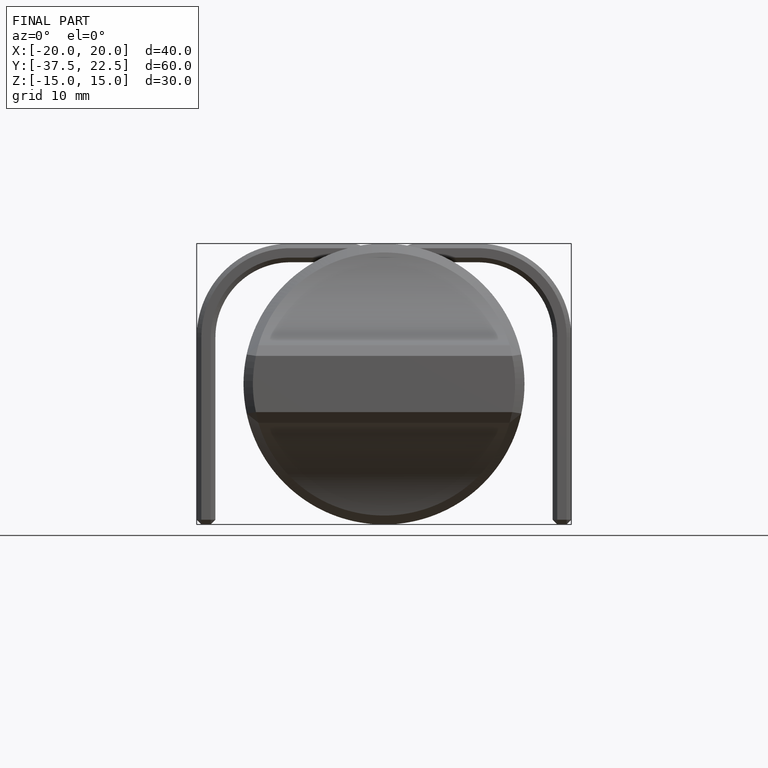
[diagram: finished part — front view with bounding-box wireframe]
